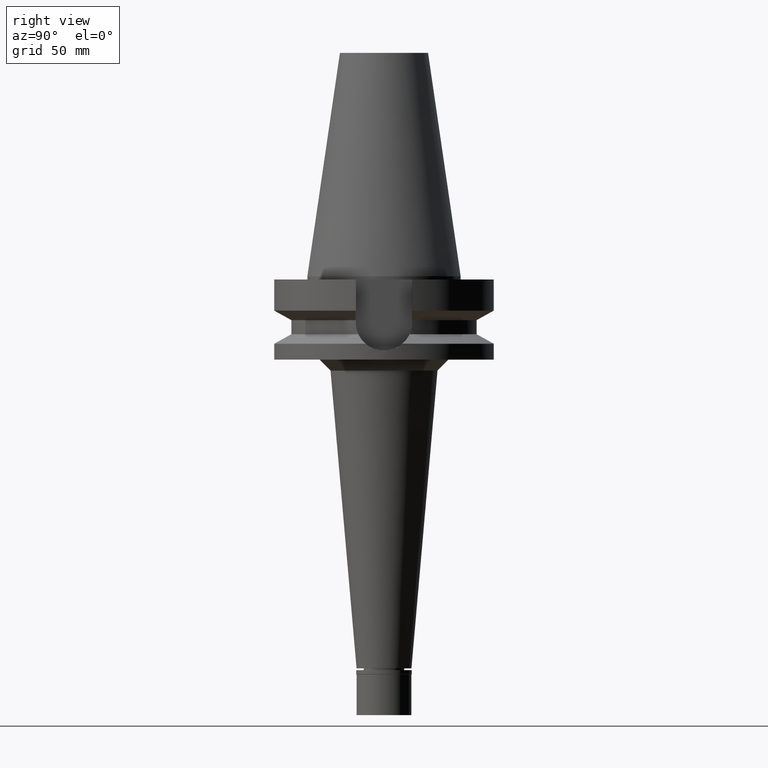
[diagram: clean part render]
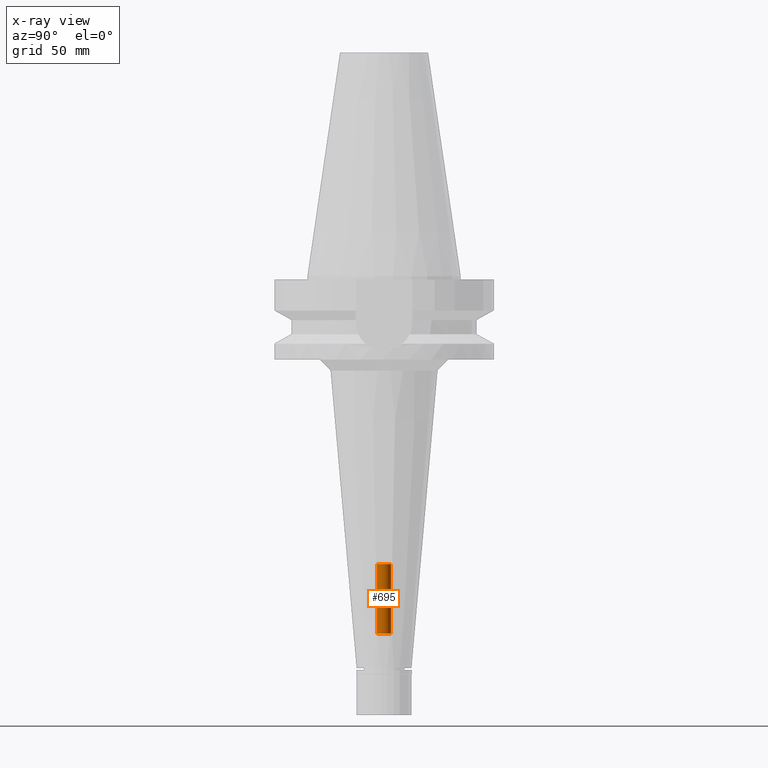
[diagram: x-ray — body ghosted, one internal face saturated and labeled with its STEP entity id]
A machine part, right view, then the same camera in x-ray: the body is ghosted and one INTERNAL B-rep face — a face not visible from any outside direction — is saturated and labeled: STEP entity #695.
In plain terms, the highlighted cylindrical surface (edge-blend (fillet) strip) has radius 3.2 mm, axis along (0, 0, -1).
Its self-contained STEP definition (entity closure, byte-faithful):
#37 = VERTEX_POINT ( 'NONE', #2290 ) ;
#48 = DIRECTION ( 'NONE',  ( 0.0000000000000000000, 0.0000000000000000000, 1.000000000000000000 ) ) ;
#92 = CARTESIAN_POINT ( 'NONE',  ( 0.0000000000000000000, 2.652340037592999854E-14, 116.5799999999999983 ) ) ;
#183 = CARTESIAN_POINT ( 'NONE',  ( 0.0000000000000000000, -3.200000000000000178, -162.8000000000000114 ) ) ;
#232 = ORIENTED_EDGE ( 'NONE', *, *, #1012, .F. ) ;
#329 = ORIENTED_EDGE ( 'NONE', *, *, #412, .T. ) ;
#336 = DIRECTION ( 'NONE',  ( 0.0000000000000000000, 0.0000000000000000000, -1.000000000000000000 ) ) ;
#412 = EDGE_CURVE ( 'NONE', #37, #2064, #3153, .T. ) ;
#414 = EDGE_LOOP ( 'NONE', ( #329, #2847, #994, #232 ) ) ;
#486 = CARTESIAN_POINT ( 'NONE',  ( 0.0000000000000000000, -3.200000000000000178, -131.2000000000000171 ) ) ;
#531 = VECTOR ( 'NONE', #2486, 1000.000000000000000 ) ;
#561 = CYLINDRICAL_SURFACE ( 'NONE', #1243, 3.200000000000000178 ) ;
#688 = CARTESIAN_POINT ( 'NONE',  ( 0.0000000000000000000, 3.200000000000000178, -131.2000000000000171 ) ) ;
#695 = ADVANCED_FACE ( 'NONE', ( #1570 ), #561, .F. ) ;
#975 = CARTESIAN_POINT ( 'NONE',  ( 0.0000000000000000000, 2.652340037592999854E-14, -131.2000000000000171 ) ) ;
#994 = ORIENTED_EDGE ( 'NONE', *, *, #3178, .T. ) ;
#1012 = EDGE_CURVE ( 'NONE', #37, #2199, #2417, .T. ) ;
#1084 = AXIS2_PLACEMENT_3D ( 'NONE', #1963, #1735, #2446 ) ;
#1210 = CARTESIAN_POINT ( 'NONE',  ( 0.0000000000000000000, -3.200000000000000178, -162.8000000000000114 ) ) ;
#1243 = AXIS2_PLACEMENT_3D ( 'NONE', #92, #336, #2090 ) ;
#1570 = FACE_OUTER_BOUND ( 'NONE', #414, .T. ) ;
#1679 = AXIS2_PLACEMENT_3D ( 'NONE', #975, #48, #2739 ) ;
#1733 = CIRCLE ( 'NONE', #1679, 3.200000000000000178 ) ;
#1735 = DIRECTION ( 'NONE',  ( 0.0000000000000000000, 0.0000000000000000000, -1.000000000000000000 ) ) ;
#1931 = DIRECTION ( 'NONE',  ( 0.0000000000000000000, 0.0000000000000000000, 1.000000000000000000 ) ) ;
#1963 = CARTESIAN_POINT ( 'NONE',  ( 0.0000000000000000000, 2.652340037592999854E-14, -162.8000000000000114 ) ) ;
#2064 = VERTEX_POINT ( 'NONE', #1210 ) ;
#2082 = VERTEX_POINT ( 'NONE', #486 ) ;
#2090 = DIRECTION ( 'NONE',  ( 0.0000000000000000000, -1.000000000000000000, 0.0000000000000000000 ) ) ;
#2199 = VERTEX_POINT ( 'NONE', #688 ) ;
#2290 = CARTESIAN_POINT ( 'NONE',  ( 0.0000000000000000000, 3.200000000000000178, -162.8000000000000114 ) ) ;
#2412 = LINE ( 'NONE', #183, #531 ) ;
#2417 = LINE ( 'NONE', #3148, #2735 ) ;
#2446 = DIRECTION ( 'NONE',  ( 0.0000000000000000000, 1.000000000000000000, 0.0000000000000000000 ) ) ;
#2486 = DIRECTION ( 'NONE',  ( 0.0000000000000000000, 0.0000000000000000000, 1.000000000000000000 ) ) ;
#2563 = EDGE_CURVE ( 'NONE', #2064, #2082, #2412, .T. ) ;
#2735 = VECTOR ( 'NONE', #1931, 1000.000000000000000 ) ;
#2739 = DIRECTION ( 'NONE',  ( 0.0000000000000000000, -1.000000000000000000, 0.0000000000000000000 ) ) ;
#2847 = ORIENTED_EDGE ( 'NONE', *, *, #2563, .T. ) ;
#3148 = CARTESIAN_POINT ( 'NONE',  ( 0.0000000000000000000, 3.200000000000000178, -162.8000000000000114 ) ) ;
#3153 = CIRCLE ( 'NONE', #1084, 3.200000000000000178 ) ;
#3178 = EDGE_CURVE ( 'NONE', #2082, #2199, #1733, .T. ) ;